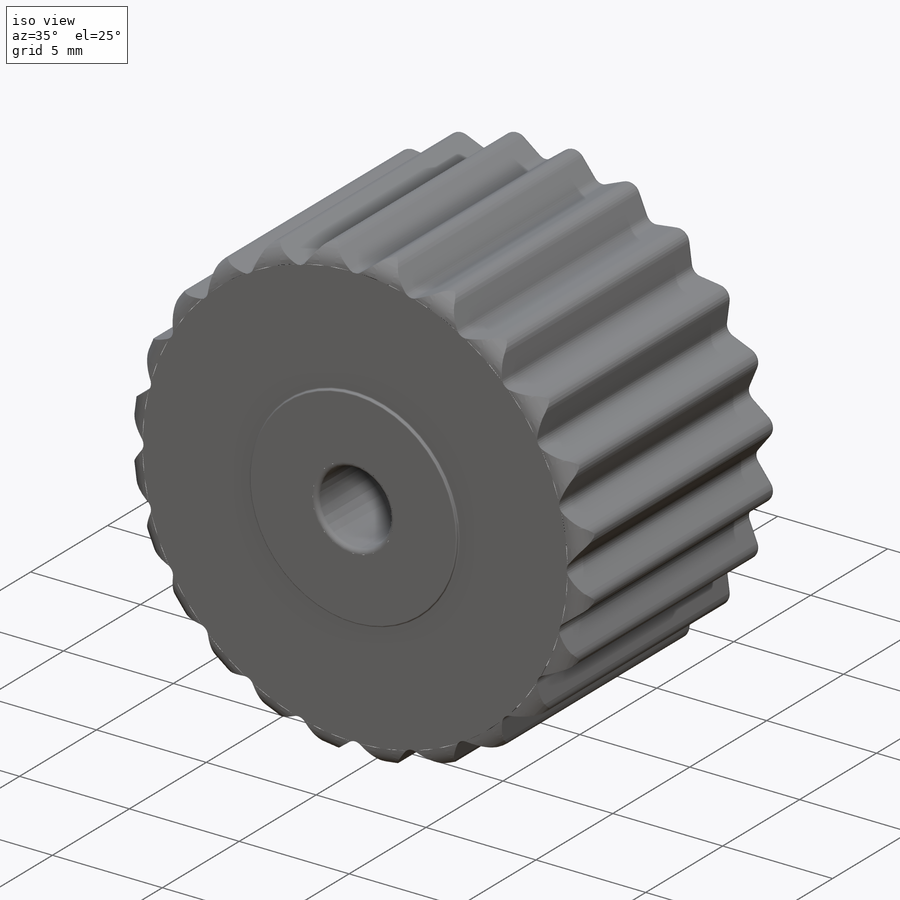
[diagram: iso view]
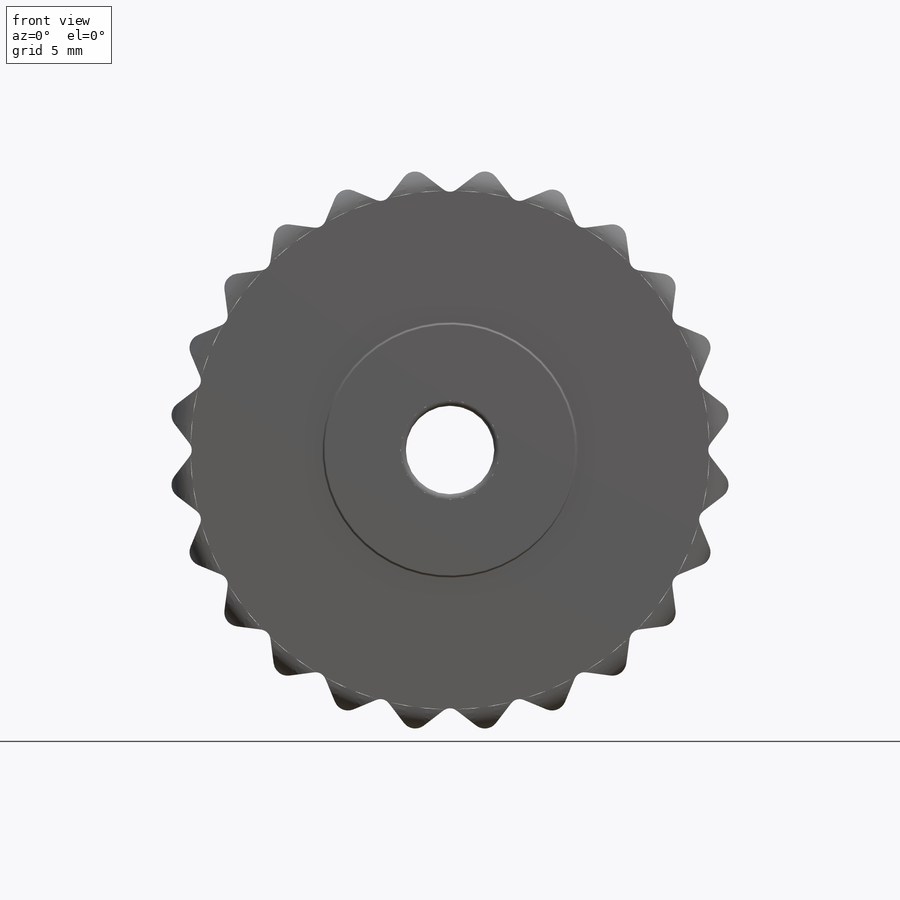
[diagram: front view]
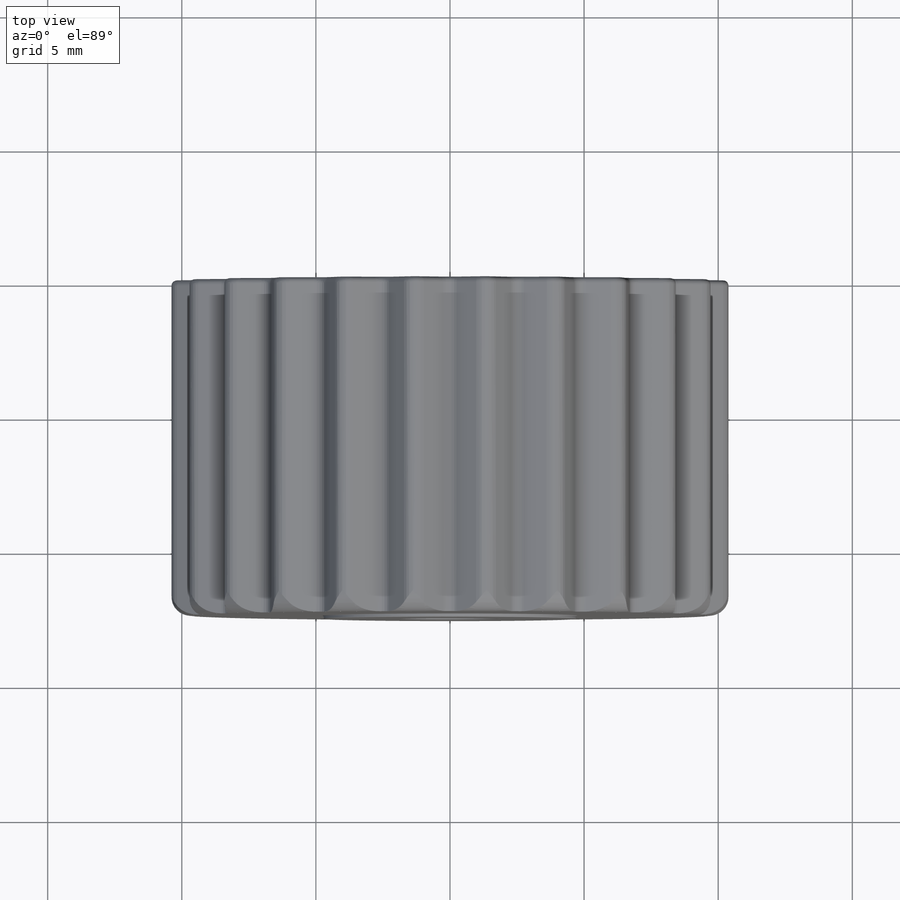
[diagram: top view]
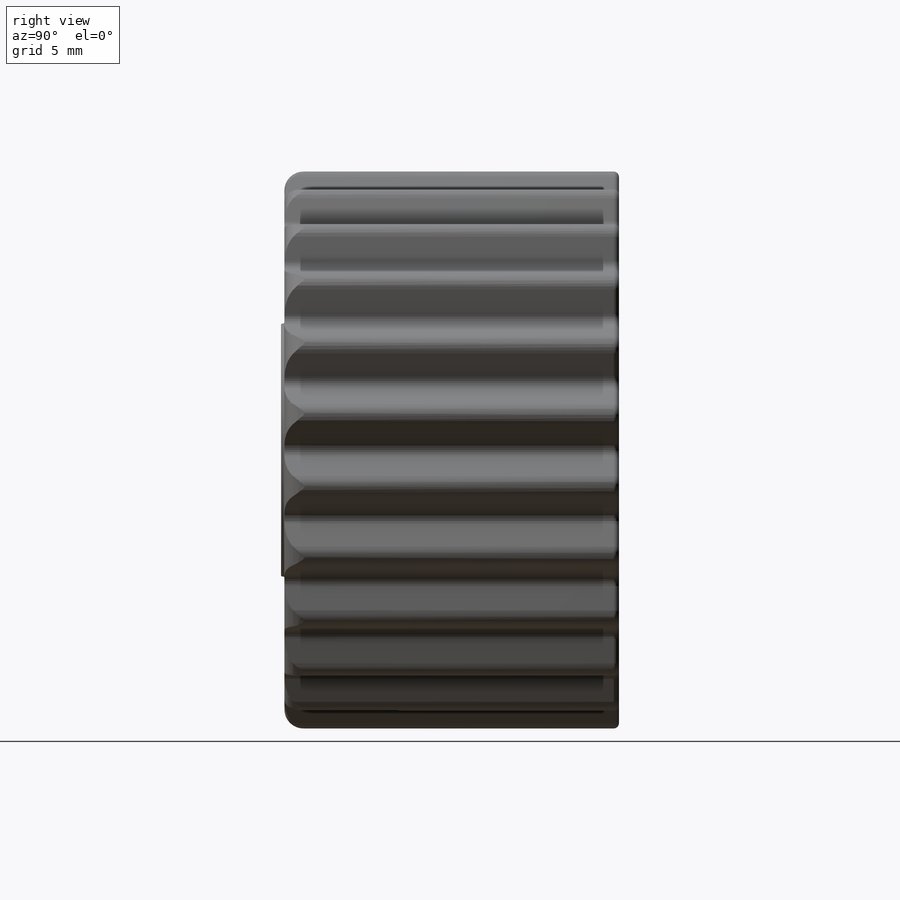
[diagram: right view]
SOLIDWORKS PART (.sldprt)
format: sldprt  version: not decoded by parser v0  size: 889,344 bytes
history: native  units: mm
features: sketch x8, fillet x4, extrude x3, cut_extrude x3, material x1, plane x1, cut_revolve x1 (+16 scaffold rows collapsed)
feature tree (37):
  scaffold x16  (default folders/planes/origin — collapsed)
  material  "Material <not specified>"
  sketch  "Sketch1"  dims[D1=19.05mm]
  extrude  "Extrude1"  Depth=12.4714mm
  sketch  "Sketch6"  dims[c1.D1=20.32mm c1.D2=~0.681097mm c2.D2=60.0deg c2.D1=~9.312835mm c3.D1=15.0deg c3.D2=~2.571362mm c4.D2=90.0deg]
  extrude  "Extrude7"  [1 undecoded]
  fillet  "Fillet1"  Radius=0.529167mm
  fillet  "Fillet2"  Radius=0.396875mm
  sketch  "Sketch11"
  plane  "Plane1"
  sketch  "Sketch12"  dims[D1=~0.79375mm]
  cut_revolve  "Cut-Revolve2"  Angle=360deg
  sketch  "Sketch2"  dims[D1=10.0457mm]
  cut_extrude  "Extrude2"  Depth=3.8608mm
  sketch  "Sketch3"  dims[c1.D1=15.0622mm c1.D2=7.5311mm c2.D2=60.0deg]
  cut_extrude  "Extrude3"  Depth=8.382mm
  sketch  "Sketch4"  dims[D1=3.302mm]
  sketch  "Sketch5"  dims[D1=9.4361mm]
  extrude  "Extrude5"  Depth=0.127mm
  cut_extrude  "Extrude6"  [1 undecoded]
  fillet  "Fillet3"  Radius=0.198437mm
  fillet  "Fillet5"  Radius=0.0508mm
decode coverage: 16 of 19 modeling features carry decoded parameters
note: ~ marks probable driven/reference dimensions
note: 2 parameter values undecoded
note: suppression state not decoded; provenance and decode notes live in map.json
